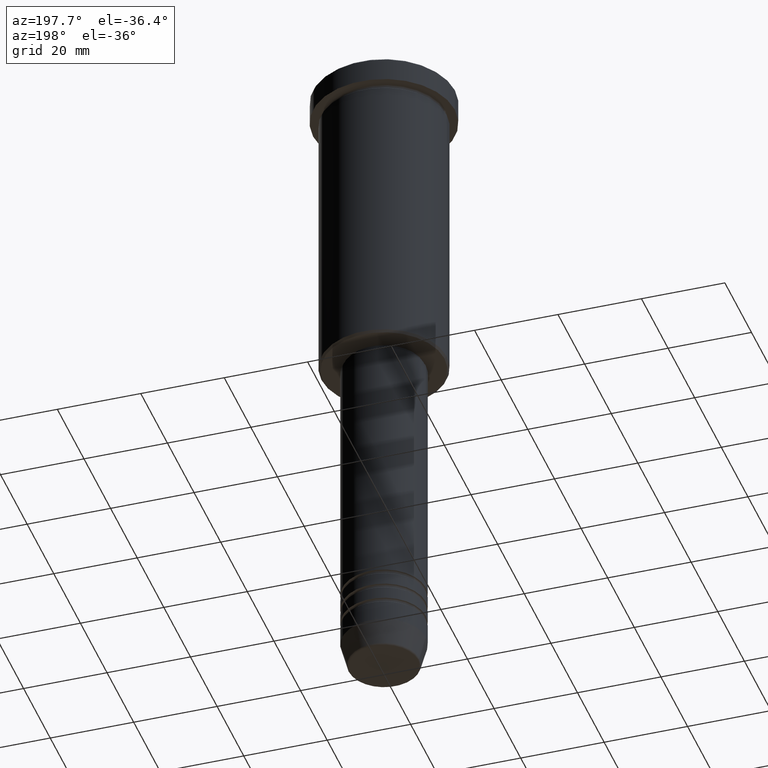
[diagram: clean part render]
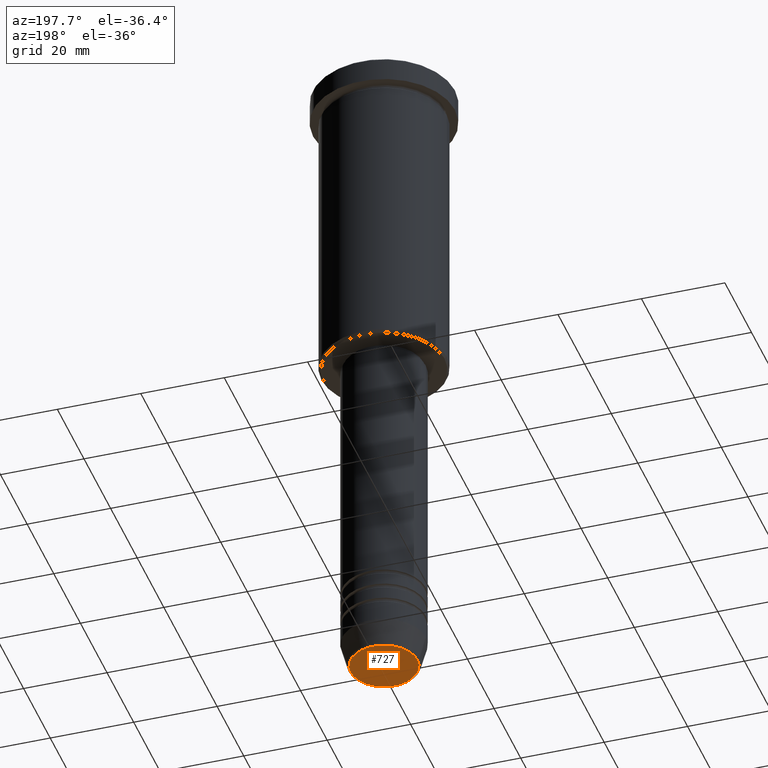
[diagram: same view with one face highlighted and labeled with its STEP entity id]
A machine part, auxiliary view. The second image highlights one B-rep face of the part: STEP entity #727.
In plain terms, the highlighted planar face has unit normal (0, -0, 1).
Its self-contained STEP definition (entity closure, byte-faithful):
#22 = FACE_OUTER_BOUND ( 'NONE', #368, .T. ) ;
#108 = PLANE ( 'NONE',  #1062 ) ;
#135 = VERTEX_POINT ( 'NONE', #989 ) ;
#186 = AXIS2_PLACEMENT_3D ( 'NONE', #1165, #983, #719 ) ;
#203 = CIRCLE ( 'NONE', #854, 8.008641351423781529 ) ;
#224 = ORIENTED_EDGE ( 'NONE', *, *, #956, .T. ) ;
#266 = DIRECTION ( 'NONE',  ( 0.000000000000000000, 0.000000000000000000, -1.000000000000000000 ) ) ;
#317 = DIRECTION ( 'NONE',  ( 0.000000000000000000, -0.000000000000000000, 1.000000000000000000 ) ) ;
#368 = EDGE_LOOP ( 'NONE', ( #459, #224 ) ) ;
#454 = DIRECTION ( 'NONE',  ( 1.000000000000000000, 0.000000000000000000, 0.000000000000000000 ) ) ;
#459 = ORIENTED_EDGE ( 'NONE', *, *, #874, .T. ) ;
#475 = DIRECTION ( 'NONE',  ( 1.000000000000000000, 0.000000000000000000, 0.000000000000000000 ) ) ;
#551 = CARTESIAN_POINT ( 'NONE',  ( 0.000000000000000000, 0.000000000000000000, -160.0000000000000284 ) ) ;
#719 = DIRECTION ( 'NONE',  ( 1.000000000000000000, 0.000000000000000000, 0.000000000000000000 ) ) ;
#727 = ADVANCED_FACE ( 'NONE', ( #22 ), #108, .F. ) ;
#760 = CARTESIAN_POINT ( 'NONE',  ( 0.000000000000000000, 0.000000000000000000, -160.0000000000000284 ) ) ;
#834 = CIRCLE ( 'NONE', #186, 8.008641351423781529 ) ;
#854 = AXIS2_PLACEMENT_3D ( 'NONE', #551, #266, #454 ) ;
#874 = EDGE_CURVE ( 'NONE', #936, #135, #203, .T. ) ;
#877 = CARTESIAN_POINT ( 'NONE',  ( 8.008641351423781529, 0.000000000000000000, -160.0000000000000284 ) ) ;
#936 = VERTEX_POINT ( 'NONE', #877 ) ;
#956 = EDGE_CURVE ( 'NONE', #135, #936, #834, .T. ) ;
#983 = DIRECTION ( 'NONE',  ( 0.000000000000000000, 0.000000000000000000, -1.000000000000000000 ) ) ;
#989 = CARTESIAN_POINT ( 'NONE',  ( -8.008641351423781529, 1.010348648938493172E-15, -160.0000000000000284 ) ) ;
#1062 = AXIS2_PLACEMENT_3D ( 'NONE', #760, #317, #475 ) ;
#1165 = CARTESIAN_POINT ( 'NONE',  ( 0.000000000000000000, 0.000000000000000000, -160.0000000000000284 ) ) ;